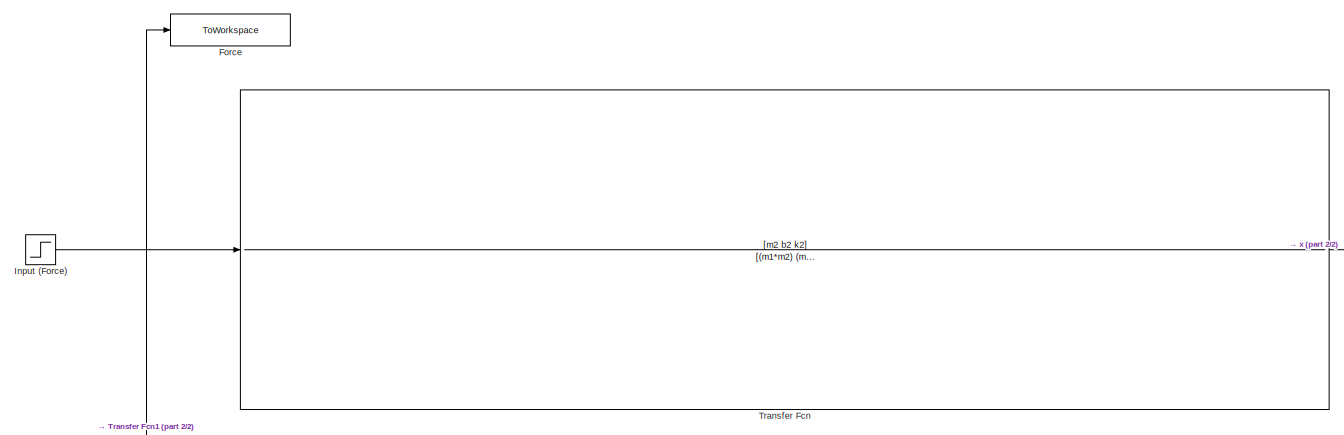
[diagram: root canvas - part 1/2, full width, top band]
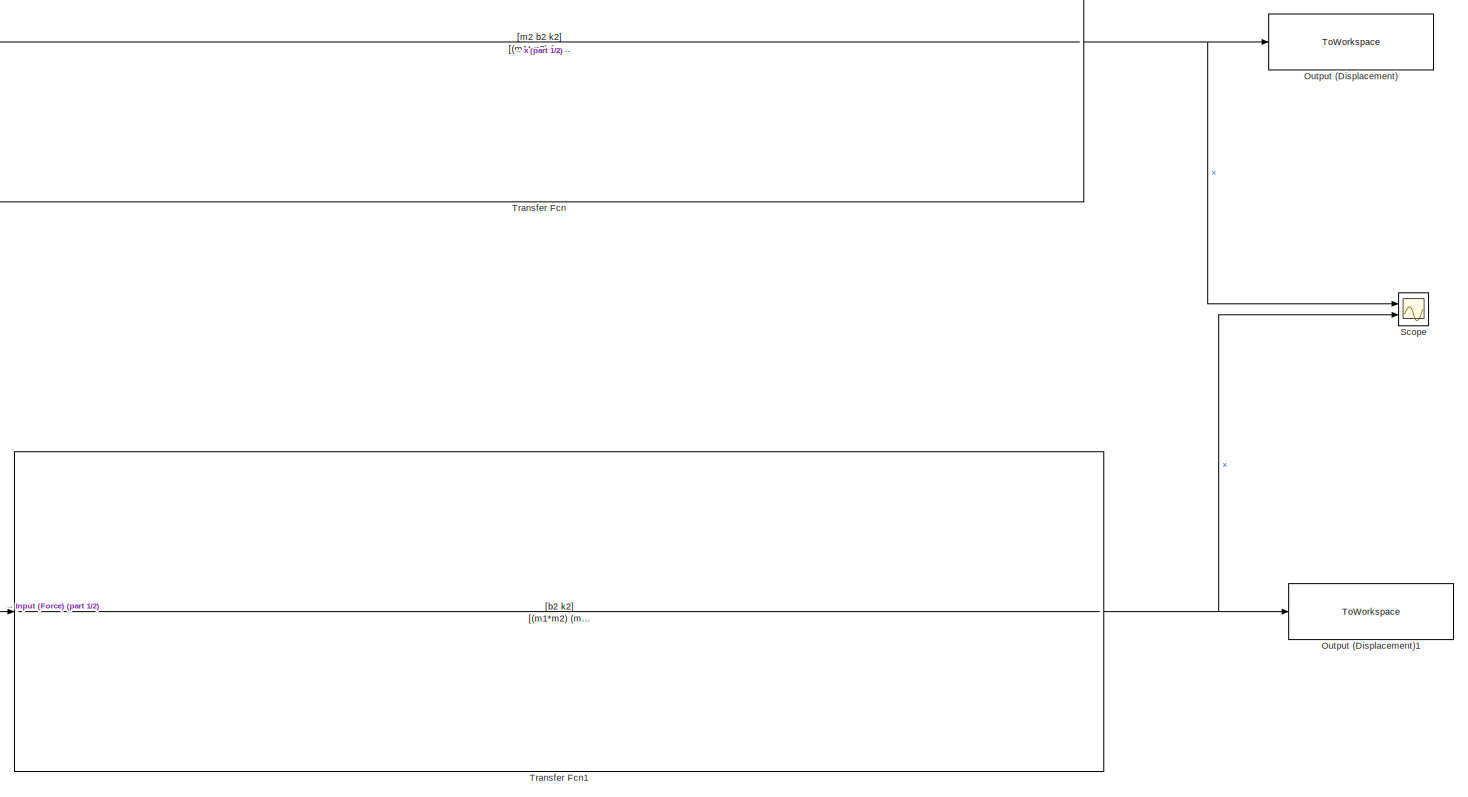
[diagram: root canvas - part 2/2, most of the canvas]
MODEL slx_be599548c464
KIND model
CONFIG AbsTol = auto
CONFIG EnableMultiTasking = on
CONFIG FixedStep = auto
CONFIG MaxStep = 0.01
CONFIG MinStep = auto
CONFIG RelTol = 1e-3
CONFIG SampleTimeConstraint = Unconstrained
CONFIG SolverName = ode45
CONFIG StartTime = 0.0
CONFIG StopTime = Sim_Time
BLOCK [ToWorkspace] Force
  FixptAsFi = on
  MaxDataPoints = inf
  Ports = [1]
  SampleTime = -1
  SaveFormat = Timeseries
  VariableName = F
BLOCK [Step] Input (Force)
  After = F
  SampleTime = 0
  ZeroCross = off
BLOCK [ToWorkspace] Output (Displacement)
  FixptAsFi = on
  MaxDataPoints = inf
  Ports = [1]
  SampleTime = -1
  SaveFormat = Timeseries
  VariableName = x1
BLOCK [ToWorkspace] Output (Displacement)1
  FixptAsFi = on
  MaxDataPoints = inf
  Ports = [1]
  SampleTime = -1
  SaveFormat = Timeseries
  VariableName = x2
BLOCK [Scope] Scope
  Floating = off
  NumInputPorts = 2
  Ports = [2]
  ScopeSpecificationString = Simulink.scopes.TimeScopeBlockCfg('CurrentConfiguration', extmgr.ConfigurationSet(extmgr.Configuration('Core','General UI',true),extmgr.Configuration('Core','Source UI',true),extmgr.Configuration('Sources','WiredSimulink',true,'DataLoggingSaveFormat','StructureWithTime','DataLoggingLimitDataPoints',true,'DataLoggingDecimation','1','DataLoggingDecimateData',true),extmgr.Configuration('Visuals','Tim...<+1647ch>
BLOCK [TransferFcn] Transfer Fcn
  Denominator = [(m1*m2)   (m1*b2+m2*b2+b1*m2)  (m1*k2+b1*b2+k1*m2+k2*m2)   (b1*k2+k1*b2+k2*b2-k2*b2)    (k1*k2)]
  Numerator = [m2 b2 k2]
BLOCK [TransferFcn] Transfer Fcn1
  Denominator = [(m1*m2)   (m1*b2+b1*m2+b2*m2)  (m1*k2+b1*b2+k1*m2+k2*m2)   (b1*k2+k1*b2)    (k1*k2)]
  Numerator = [b2 k2]
NET Input (Force):1 -> Force:1, Transfer Fcn1:1, Transfer Fcn:1
NET Transfer Fcn1:1 -> Output (Displacement)1:1, Scope:2
NET Transfer Fcn:1 -> Output (Displacement):1, Scope:1
note: NET lines group one-source signal fan-out (src -> all destinations, sorted); 1:1 wires keep LINE
